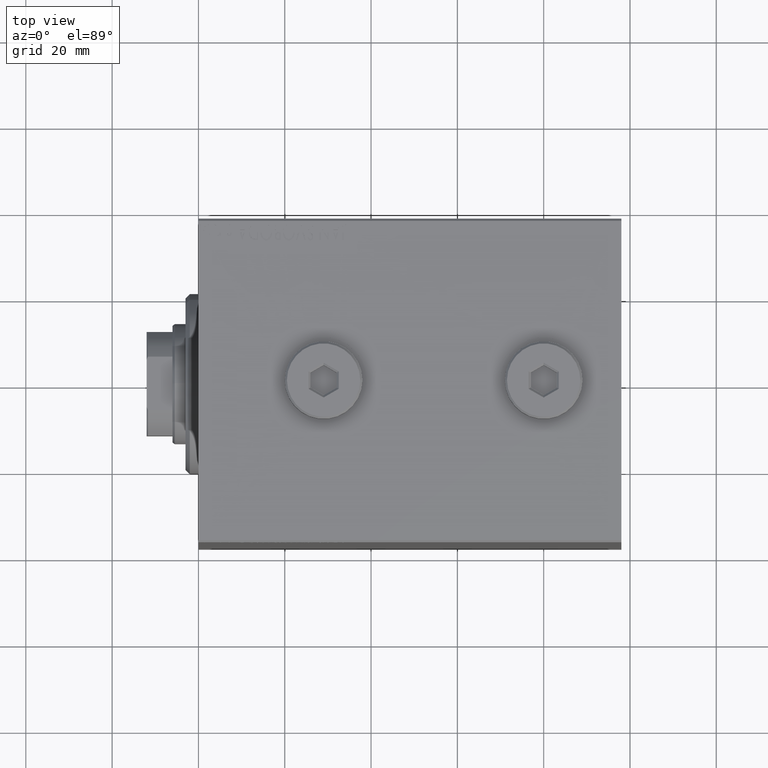
[diagram: clean part render]
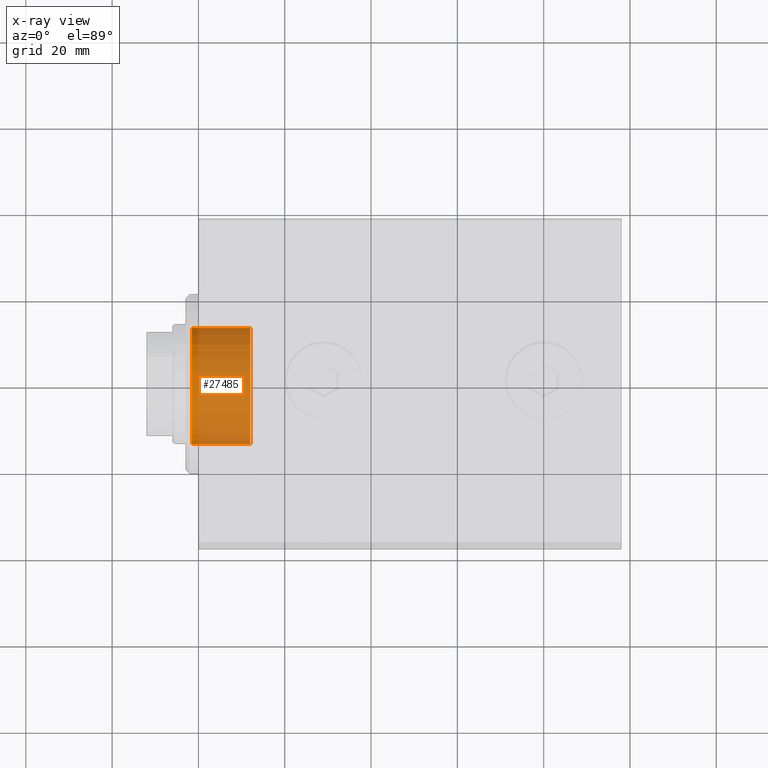
[diagram: x-ray — body ghosted, one internal face saturated and labeled with its STEP entity id]
A machine part, top view, then the same camera in x-ray: the body is ghosted and one INTERNAL B-rep face — a face not visible from any outside direction — is saturated and labeled: STEP entity #27485.
In plain terms, the highlighted cylindrical surface (partial cylindrical patch) has radius 14 mm, axis along (-1, 0, 0).
Its self-contained STEP definition (entity closure, byte-faithful):
#468 = AXIS2_PLACEMENT_3D ( 'NONE', #18164, #20691, #14036 ) ;
#1358 = DIRECTION ( 'NONE',  ( 0.000000000000000000, 0.000000000000000000, -1.000000000000000000 ) ) ;
#2246 = DIRECTION ( 'NONE',  ( 1.000000000000000000, 0.000000000000000000, 0.000000000000000000 ) ) ;
#2623 = VERTEX_POINT ( 'NONE', #15421 ) ;
#3190 = LINE ( 'NONE', #20379, #11085 ) ;
#3318 = EDGE_LOOP ( 'NONE', ( #7284, #39030, #8932, #14829 ) ) ;
#4203 = DIRECTION ( 'NONE',  ( 1.000000000000000000, 0.000000000000000000, 0.000000000000000000 ) ) ;
#6722 = FACE_OUTER_BOUND ( 'NONE', #3318, .T. ) ;
#7167 = CYLINDRICAL_SURFACE ( 'NONE', #468, 14.00000000000000178 ) ;
#7284 = ORIENTED_EDGE ( 'NONE', *, *, #35965, .F. ) ;
#8162 = AXIS2_PLACEMENT_3D ( 'NONE', #12337, #2246, #1358 ) ;
#8932 = ORIENTED_EDGE ( 'NONE', *, *, #12239, .T. ) ;
#11085 = VECTOR ( 'NONE', #27274, 1000.000000000000000 ) ;
#12239 = EDGE_CURVE ( 'NONE', #43569, #12665, #38791, .T. ) ;
#12337 = CARTESIAN_POINT ( 'NONE',  ( 1.499999999999999556, 0.000000000000000000, 0.000000000000000000 ) ) ;
#12665 = VERTEX_POINT ( 'NONE', #40038 ) ;
#12669 = CARTESIAN_POINT ( 'NONE',  ( -12.00000000000000000, 0.000000000000000000, -14.00000000000000178 ) ) ;
#13618 = EDGE_CURVE ( 'NONE', #2623, #12665, #23666, .T. ) ;
#14036 = DIRECTION ( 'NONE',  ( 0.000000000000000000, 0.000000000000000000, -1.000000000000000000 ) ) ;
#14829 = ORIENTED_EDGE ( 'NONE', *, *, #13618, .F. ) ;
#15421 = CARTESIAN_POINT ( 'NONE',  ( -12.00000000000000000, 0.000000000000000000, -14.00000000000000178 ) ) ;
#16469 = EDGE_CURVE ( 'NONE', #22113, #43569, #3190, .T. ) ;
#17517 = CIRCLE ( 'NONE', #30614, 14.00000000000000178 ) ;
#18164 = CARTESIAN_POINT ( 'NONE',  ( -12.00000000000000000, 0.000000000000000000, 0.000000000000000000 ) ) ;
#20379 = CARTESIAN_POINT ( 'NONE',  ( -12.00000000000000000, 1.714505518806294835E-15, 14.00000000000000178 ) ) ;
#20691 = DIRECTION ( 'NONE',  ( 1.000000000000000000, -0.000000000000000000, -0.000000000000000000 ) ) ;
#22113 = VERTEX_POINT ( 'NONE', #32013 ) ;
#23666 = LINE ( 'NONE', #12669, #39563 ) ;
#27109 = DIRECTION ( 'NONE',  ( 1.000000000000000000, -0.000000000000000000, -0.000000000000000000 ) ) ;
#27274 = DIRECTION ( 'NONE',  ( 1.000000000000000000, -0.000000000000000000, -0.000000000000000000 ) ) ;
#27485 = ADVANCED_FACE ( 'NONE', ( #6722 ), #7167, .F. ) ;
#27581 = CARTESIAN_POINT ( 'NONE',  ( -12.00000000000000000, 0.000000000000000000, 0.000000000000000000 ) ) ;
#30614 = AXIS2_PLACEMENT_3D ( 'NONE', #27581, #4203, #35607 ) ;
#32013 = CARTESIAN_POINT ( 'NONE',  ( -12.00000000000000000, 1.714505518806294835E-15, 14.00000000000000178 ) ) ;
#35607 = DIRECTION ( 'NONE',  ( 0.000000000000000000, 0.000000000000000000, -1.000000000000000000 ) ) ;
#35965 = EDGE_CURVE ( 'NONE', #22113, #2623, #17517, .T. ) ;
#38791 = CIRCLE ( 'NONE', #8162, 14.00000000000000178 ) ;
#39030 = ORIENTED_EDGE ( 'NONE', *, *, #16469, .T. ) ;
#39563 = VECTOR ( 'NONE', #27109, 1000.000000000000000 ) ;
#40038 = CARTESIAN_POINT ( 'NONE',  ( 1.499999999999999556, 0.000000000000000000, -14.00000000000000178 ) ) ;
#41718 = CARTESIAN_POINT ( 'NONE',  ( 1.499999999999999556, 1.714505518806294835E-15, 14.00000000000000178 ) ) ;
#43569 = VERTEX_POINT ( 'NONE', #41718 ) ;